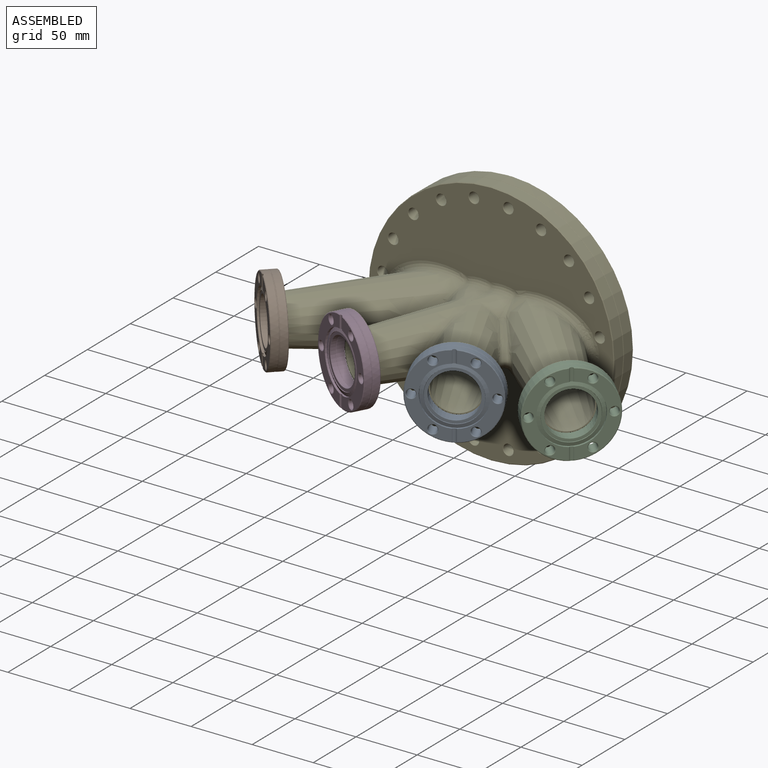
[diagram: assembled view]
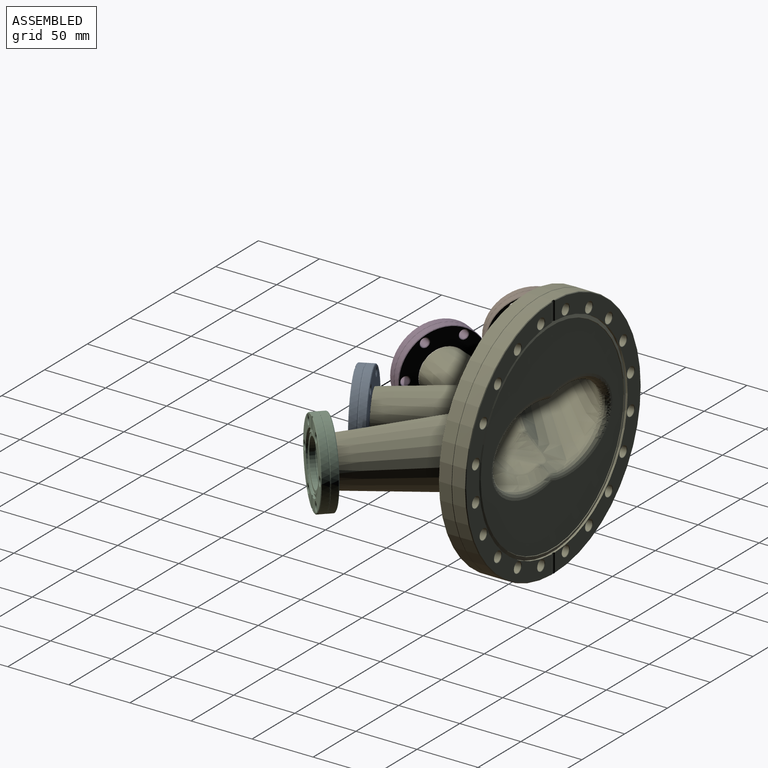
[diagram: assembled view, second angle]
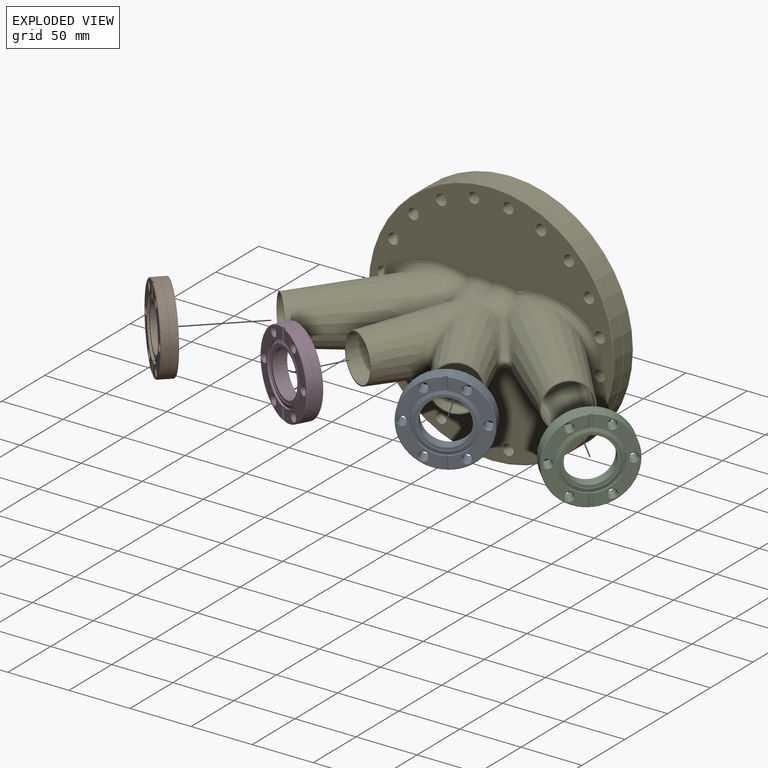
[diagram: exploded view]
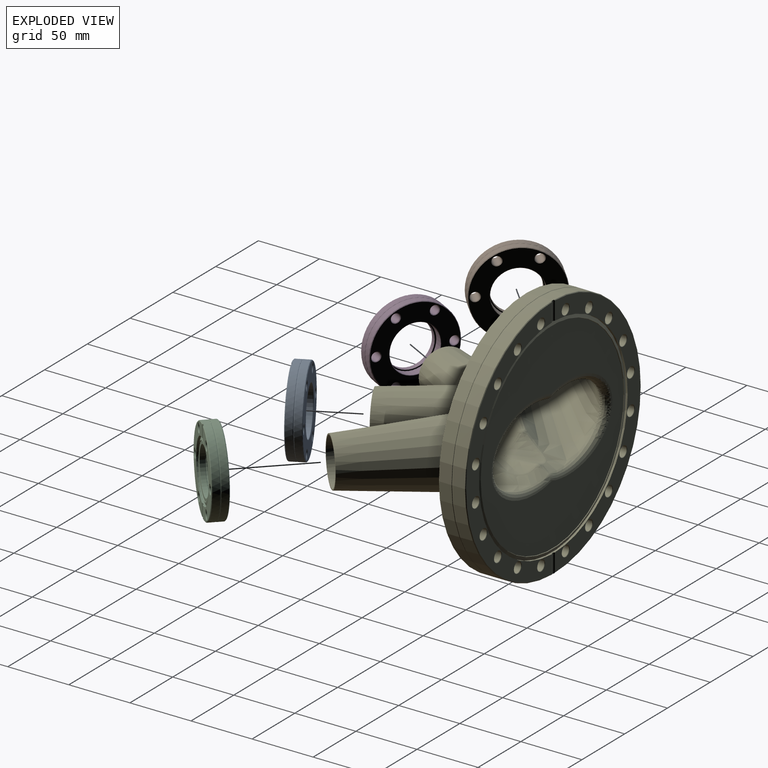
[diagram: exploded view, second angle]
ASSEMBLY  parts=5 mates=4
PART A: 41 faces, bbox 75.3x12.7x75.3 mm
  f0: cylinder r=34.54mm len=69.09mm, axis (0,-1,0), area 1172.5mm2, adj f1,f2,f5,f11,f36
  f1: cylinder r=2.38mm len=10.46mm, axis (0,0,1), area 41.3mm2, adj f0,f2,f3,f4,f5,f6
  f2: cone r=34.54mm half-angle=45deg, axis (0,1,0), area 75.3mm2, adj f0,f1,f3,f11
  f3: plane 67.98x32.27mm, normal (0,-1,0), area 728.6mm2, adj f1,f2,f4,f11,f12,f15,f18
  f4: cylinder r=24.13mm len=48.26mm, axis (0,1,0), area 275.3mm2, adj f1,f3,f6,f11,f38
  f5: cone r=34.54mm half-angle=45deg, axis (0,1,0), area 75.3mm2, adj f0,f1,f6,f11
  f6: plane 67.98x32.27mm, normal (0,-1,0), area 728.6mm2, adj f1,f4,f5,f11,f21,f24,f27
  f7: cylinder r=34.54mm len=69.09mm, axis (0,-1,0), area 1172.5mm2, adj f33,f36
  f8: plane 68.07x68.07mm, normal (0,1,0), area 2139.2mm2, adj f13,f16,f19,f22,f25,f28,f30,f33
  f9: cylinder r=19.18mm len=38.35mm, axis (0,1,0), area 696.9mm2, adj f30,f35
  f10: cylinder r=18.29mm len=36.58mm, axis (0,-1,0), area 423.2mm2, adj f31,f32
  f11: cylinder r=2.38mm len=10.46mm, axis (0,0,-1), area 41.3mm2, adj f0,f2,f3,f4,f5,f6
  f12: cone r=3.87mm half-angle=45deg, axis (0,-1,0), area 16.3mm2, adj f3,f14
  f13: cone r=3.37mm half-angle=45deg, axis (0,1,0), area 16.3mm2, adj f8,f14
  f14: cylinder r=3.37mm len=11.68mm, axis (0,-1,0), area 247.1mm2, adj f12,f13
  f15: cone r=3.87mm half-angle=45deg, axis (0,-1,0), area 16.3mm2, adj f3,f17
  f16: cone r=3.37mm half-angle=45deg, axis (0,1,0), area 16.3mm2, adj f8,f17
  f17: cylinder r=3.37mm len=11.68mm, axis (0,-1,0), area 247.1mm2, adj f15,f16
  f18: cone r=3.87mm half-angle=45deg, axis (0,-1,0), area 16.3mm2, adj f3,f20
  f19: cone r=3.37mm half-angle=45deg, axis (0,1,0), area 16.3mm2, adj f8,f20
  f20: cylinder r=3.37mm len=11.68mm, axis (0,-1,0), area 247.1mm2, adj f18,f19
  f21: cone r=3.87mm half-angle=45deg, axis (0,-1,0), area 16.3mm2, adj f6,f23
  f22: cone r=3.37mm half-angle=45deg, axis (0,1,0), area 16.3mm2, adj f8,f23
  f23: cylinder r=3.37mm len=11.68mm, axis (0,-1,0), area 247.1mm2, adj f21,f22
  f24: cone r=3.87mm half-angle=45deg, axis (0,-1,0), area 16.3mm2, adj f6,f26
  f25: cone r=3.37mm half-angle=45deg, axis (0,1,0), area 16.3mm2, adj f8,f26
  f26: cylinder r=3.37mm len=11.68mm, axis (0,-1,0), area 247.1mm2, adj f24,f25
  f27: cone r=3.87mm half-angle=45deg, axis (0,-1,0), area 16.3mm2, adj f6,f29
  f28: cone r=3.37mm half-angle=45deg, axis (0,1,0), area 16.3mm2, adj f8,f29
  f29: cylinder r=3.37mm len=11.68mm, axis (0,-1,0), area 247.1mm2, adj f27,f28
  f30: torus R=19.69mm, axis (0,1,0), area 97.1mm2, adj f8,f9
  f31: torus R=18.49mm, axis (0,-1,0), area 36.8mm2, adj f10,f40
  f32: torus R=18.54mm, axis (0,1,0), area 46.1mm2, adj f10,f39
  f33: cone r=34.04mm half-angle=45deg, axis (0,-1,0), area 154.8mm2, adj f7,f8
  f34: torus R=19.18mm, axis (0,-1,0), area 99.1mm2, adj f35,f40
  f35: cone r=19.18mm half-angle=32deg, axis (0,-1,0), area 74.1mm2, adj f9,f34
  f36: torus R=34.8mm, axis (0,-1,0), area 229.8mm2, adj f0,f7
  f37: cone r=20.96mm half-angle=20deg, axis (0,-1,0), area 70.9mm2, adj f38,f39
  f38: cone r=24.13mm half-angle=70deg, axis (0,1,0), area 478.6mm2, adj f4,f37
  f39: plane 41.54x41.54mm, normal (0,-1,0), area 275.2mm2, adj f32,f37
  f40: plane 38.35x38.35mm, normal (0,1,0), area 81.2mm2, adj f31,f34
PART B: same geometry as A
PART C: same geometry as A
PART D: same geometry as A
PART E: 145 faces, bbox 263.9x156.5x219.8 mm
  f0: cone r=18.35mm half-angle=4deg, axis (0.46,-0.89,0), area 342.2mm2, adj f1,f143,f144
  f1: bspline ~22.37x9.42mm, area 28.1mm2, adj f0,f2,f142
  f2: sphere r=5mm, area 17mm2, adj f1,f3,f143
  f3: bspline ~35.4x34.04mm, area 703.1mm2, adj f2,f4,f141,f142
  f4: cone r=18.35mm half-angle=5deg, axis (-0.71,-0.7,0), area 16439.3mm2, adj f3,f5,f137,f138,f139,f140,f143
  f5: bspline ~13.54x7.82mm, area 24.6mm2, adj f4,f6,f135,f136
  f6: cone r=18.35mm half-angle=5deg, axis (0.71,-0.7,0), area 16450.4mm2, adj f5,f7,f128,f129,f130,f132,f134
  f7: bspline ~31.29x26.55mm, area 142.5mm2, adj f6,f8,f127,f135
  f8: cone r=18.35mm half-angle=4deg, axis (-0.46,-0.89,0), area 342.2mm2, adj f7,f9,f124
  f9: bspline ~22.37x9.42mm, area 28.1mm2, adj f8,f10,f127
  f10: cone r=18.35mm half-angle=4deg, axis (0.46,-0.89,0), area 8385.7mm2, adj f9,f11,f121,f128,f142
  f11: plane 38.61x34.19mm, normal (-0.46,0.89,0), area 112.7mm2, adj f10,f12
  f12: cone r=19.3mm half-angle=4deg, axis (0.46,-0.89,0), area 8197.1mm2, adj f11,f13,f118,f119,f120
  f13: bspline ~43.68x39.91mm, area 809.1mm2, adj f12,f14,f117,f118
  f14: cone r=19.3mm half-angle=5deg, axis (0.71,-0.7,0), area 13483.3mm2, adj f13,f15,f112,f113,f114,f115,f116,f118
  f15: bspline ~65.19x22.77mm, area 560.4mm2, adj f14,f16,f111,f112
  f16: plane 201.53x201.53mm, normal (0,1,0), area 20530.4mm2, adj f15,f17,f71,f72,f73,f74,f75,f76
  f17: cone r=4.22mm half-angle=45deg, axis (0,1,0), area 9.8mm2, adj f16,f18
  f18: cylinder r=4.22mm len=21.84mm, axis (0,-1,0), area 578.7mm2, adj f17,f19
  f19: cone r=4.47mm half-angle=45deg, axis (0,-1,0), area 9.8mm2, adj f18,f20
  f20: plane 201.39x98.94mm, normal (0,-1,0), area 3707.8mm2, adj f19,f21,f23,f25,f27,f29,f31,f33
  f21: cone r=4.47mm half-angle=45deg, axis (0,-1,0), area 9.8mm2, adj f20,f22
  f22: cylinder r=4.22mm len=21.84mm, axis (0,-1,0), area 578.7mm2, adj f21,f77
  f23: cone r=4.47mm half-angle=45deg, axis (0,-1,0), area 9.8mm2, adj f20,f24
  f24: cylinder r=4.22mm len=21.84mm, axis (0,-1,0), area 578.7mm2, adj f23,f76
  f25: cone r=4.47mm half-angle=45deg, axis (0,-1,0), area 9.8mm2, adj f20,f26
  f26: cylinder r=4.22mm len=21.84mm, axis (0,-1,0), area 578.7mm2, adj f25,f75
  f27: cone r=4.47mm half-angle=45deg, axis (0,-1,0), area 9.8mm2, adj f20,f28
  f28: cylinder r=4.22mm len=21.84mm, axis (0,-1,0), area 578.7mm2, adj f27,f74
  f29: cone r=4.47mm half-angle=45deg, axis (0,-1,0), area 9.8mm2, adj f20,f30
  f30: cylinder r=4.22mm len=21.84mm, axis (0,-1,0), area 578.7mm2, adj f29,f82
  f31: cone r=4.47mm half-angle=45deg, axis (0,-1,0), area 9.8mm2, adj f20,f32
  f32: cylinder r=4.22mm len=21.84mm, axis (0,-1,0), area 578.7mm2, adj f31,f83
  f33: cone r=4.47mm half-angle=45deg, axis (0,-1,0), area 9.8mm2, adj f20,f34
  f34: cylinder r=4.22mm len=21.84mm, axis (0,-1,0), area 578.7mm2, adj f33,f73
  f35: cone r=4.47mm half-angle=45deg, axis (0,-1,0), area 9.8mm2, adj f20,f36
  f36: cylinder r=4.22mm len=21.84mm, axis (0,-1,0), area 578.7mm2, adj f35,f72
  f37: cone r=4.47mm half-angle=45deg, axis (0,-1,0), area 9.8mm2, adj f20,f38
  f38: cylinder r=4.22mm len=21.84mm, axis (0,-1,0), area 578.7mm2, adj f37,f71
  f39: cylinder r=85.72mm len=171.45mm, axis (0,1,0), area 915.9mm2, adj f20,f40,f43,f68,f70
  f40: cone r=85.72mm half-angle=70deg, axis (0,1,0), area 1610.6mm2, adj f39,f41
  f41: cone r=82.87mm half-angle=20deg, axis (0,-1,0), area 281.2mm2, adj f40,f42
  f42: plane 165.37x165.37mm, normal (0,-1,0), area 13289.7mm2, adj f41,f134,f137
  f43: plane 201.39x98.94mm, normal (0,-1,0), area 3707.8mm2, adj f39,f44,f46,f48,f50,f52,f54,f56
  f44: cone r=4.47mm half-angle=45deg, axis (0,-1,0), area 9.8mm2, adj f43,f45
  f45: cylinder r=4.22mm len=21.84mm, axis (0,-1,0), area 578.7mm2, adj f44,f109
  f46: cone r=4.47mm half-angle=45deg, axis (0,-1,0), area 9.8mm2, adj f43,f47
  f47: cylinder r=4.22mm len=21.84mm, axis (0,-1,0), area 578.7mm2, adj f46,f108
  f48: cone r=4.47mm half-angle=45deg, axis (0,-1,0), area 9.8mm2, adj f43,f49
  f49: cylinder r=4.22mm len=21.84mm, axis (0,-1,0), area 578.7mm2, adj f48,f107
  f50: cone r=4.47mm half-angle=45deg, axis (0,-1,0), area 9.8mm2, adj f43,f51
  f51: cylinder r=4.22mm len=21.84mm, axis (0,-1,0), area 578.7mm2, adj f50,f106
  f52: cone r=4.47mm half-angle=45deg, axis (0,-1,0), area 9.8mm2, adj f43,f53
  f53: cylinder r=4.22mm len=21.84mm, axis (0,-1,0), area 578.7mm2, adj f52,f101
  f54: cone r=4.47mm half-angle=45deg, axis (0,-1,0), area 9.8mm2, adj f43,f55
  f55: cylinder r=4.22mm len=21.84mm, axis (0,-1,0), area 578.7mm2, adj f54,f103
  f56: cone r=4.47mm half-angle=45deg, axis (0,-1,0), area 9.8mm2, adj f43,f57
  f57: cylinder r=4.22mm len=21.84mm, axis (0,-1,0), area 578.7mm2, adj f56,f81
  f58: cone r=4.47mm half-angle=45deg, axis (0,-1,0), area 9.8mm2, adj f43,f59
  f59: cylinder r=4.22mm len=21.84mm, axis (0,-1,0), area 578.7mm2, adj f58,f80
  f60: cone r=4.47mm half-angle=45deg, axis (0,-1,0), area 9.8mm2, adj f43,f61
  f61: cylinder r=4.22mm len=21.84mm, axis (0,-1,0), area 578.7mm2, adj f60,f79
  f62: cone r=4.47mm half-angle=45deg, axis (0,-1,0), area 9.8mm2, adj f43,f63
  f63: cylinder r=4.22mm len=21.84mm, axis (0,-1,0), area 578.7mm2, adj f62,f78
  f64: cone r=101.22mm half-angle=45deg, axis (0,1,0), area 225.8mm2, adj f43,f65,f68,f70
  f65: cylinder r=101.22mm len=202.44mm, axis (0,-1,0), area 6504.8mm2, adj f64,f66,f68,f69,f70
  f66: torus R=101.47mm, axis (0,-1,0), area 675.5mm2, adj f65,f67
  f67: cylinder r=101.22mm len=202.44mm, axis (0,-1,0), area 6504.8mm2, adj f66,f110
  f68: cylinder r=2.38mm len=15.51mm, axis (0,0,-1), area 61.4mm2, adj f20,f39,f43,f64,f65,f69
  f69: cone r=101.22mm half-angle=45deg, axis (0,1,0), area 225.8mm2, adj f20,f65,f68,f70
  f70: cylinder r=2.38mm len=15.51mm, axis (0,0,1), area 61.4mm2, adj f20,f39,f43,f64,f65,f69
  f71: cone r=4.22mm half-angle=45deg, axis (0,1,0), area 9.8mm2, adj f16,f38
  f72: cone r=4.22mm half-angle=45deg, axis (0,1,0), area 9.8mm2, adj f16,f36
  f73: cone r=4.22mm half-angle=45deg, axis (0,1,0), area 9.8mm2, adj f16,f34
  f74: cone r=4.22mm half-angle=45deg, axis (0,1,0), area 9.8mm2, adj f16,f28
  f75: cone r=4.22mm half-angle=45deg, axis (0,1,0), area 9.8mm2, adj f16,f26
  f76: cone r=4.22mm half-angle=45deg, axis (0,1,0), area 9.8mm2, adj f16,f24
  f77: cone r=4.22mm half-angle=45deg, axis (0,1,0), area 9.8mm2, adj f16,f22
  f78: cone r=4.22mm half-angle=45deg, axis (0,1,0), area 9.8mm2, adj f16,f63
  f79: cone r=4.22mm half-angle=45deg, axis (0,1,0), area 9.8mm2, adj f16,f61
  f80: cone r=4.22mm half-angle=45deg, axis (0,1,0), area 9.8mm2, adj f16,f59
  f81: cone r=4.22mm half-angle=45deg, axis (0,1,0), area 9.8mm2, adj f16,f57
  f82: cone r=4.22mm half-angle=45deg, axis (0,1,0), area 9.8mm2, adj f16,f30,f114
  f83: cone r=4.22mm half-angle=45deg, axis (0,1,0), area 9.8mm2, adj f16,f32,f112
  f84: bspline ~19.86x6.29mm, area 136.7mm2, adj f16,f85,f98,f111
  f85: sphere r=5mm, area 11.2mm2, adj f84,f86,f99
  f86: bspline ~17.81x2.42mm, area 11.3mm2, adj f85,f87,f98
  f87: cone r=19.3mm half-angle=4deg, axis (0.46,-0.89,0), area 332.5mm2, adj f86,f88,f96,f99
  f88: bspline ~23.15x9.72mm, area 26.9mm2, adj f87,f89,f95
  f89: cone r=19.3mm half-angle=4deg, axis (-0.46,-0.89,0), area 8196.1mm2, adj f88,f90,f94,f105,f119
  f90: bspline ~41.79x40.05mm, area 810.2mm2, adj f89,f91,f95,f105
  f91: cone r=19.3mm half-angle=5deg, axis (-0.71,-0.7,0), area 13484.5mm2, adj f90,f92,f93,f96,f100,f102,f104,f105
  f92: bspline ~10.01x8.43mm, area 24.3mm2, adj f91,f102,f103,f104
  f93: bspline ~10.23x8.52mm, area 24.3mm2, adj f91,f100,f101,f102
  f94: plane 38.61x34.19mm, normal (0.46,0.89,0), area 112.7mm2, adj f89,f142
  f95: sphere r=5mm, area 15.9mm2, adj f88,f90,f96
  f96: bspline ~19.87x11.83mm, area 79.1mm2, adj f87,f91,f95,f97
  f97: sphere r=5mm, area 14.6mm2, adj f96,f99,f100
  f98: cone r=19.3mm half-angle=4deg, axis (-0.46,-0.89,0), area 332.5mm2, adj f84,f86,f116,f120
  f99: bspline ~19.86x6.29mm, area 136.7mm2, adj f16,f85,f87,f97
  f100: bspline ~65.19x22.77mm, area 560.4mm2, adj f16,f91,f93,f97
  f101: cone r=4.22mm half-angle=45deg, axis (0,1,0), area 9.8mm2, adj f16,f53,f93
  f102: bspline ~21.92x8.25mm, area 219.2mm2, adj f16,f91,f92,f93
  f103: cone r=4.22mm half-angle=45deg, axis (0,1,0), area 9.8mm2, adj f16,f55,f92
  f104: bspline ~72.35x22.77mm, area 585.7mm2, adj f16,f91,f92,f105
  f105: cone r=19.3mm half-angle=4deg, axis (0.46,-0.89,0), area 483.1mm2, adj f16,f89,f90,f91,f104,f118
  f106: cone r=4.22mm half-angle=45deg, axis (0,1,0), area 9.8mm2, adj f16,f51
  f107: cone r=4.22mm half-angle=45deg, axis (0,1,0), area 9.8mm2, adj f16,f49
  f108: cone r=4.22mm half-angle=45deg, axis (0,1,0), area 9.8mm2, adj f16,f47
  f109: cone r=4.22mm half-angle=45deg, axis (0,1,0), area 9.8mm2, adj f16,f45
  f110: cone r=100.71mm half-angle=45deg, axis (0,-1,0), area 455.8mm2, adj f16,f67
  f111: sphere r=5mm, area 14.6mm2, adj f15,f84,f116
  f112: bspline ~10.01x8.43mm, area 24.3mm2, adj f14,f15,f83,f113
  f113: bspline ~21.92x8.25mm, area 219.2mm2, adj f14,f16,f112,f114
  f114: bspline ~10.23x8.52mm, area 24.3mm2, adj f14,f82,f113,f115
  f115: bspline ~72.35x22.77mm, area 585.7mm2, adj f14,f16,f114,f118
  f116: bspline ~21.25x12.29mm, area 79.1mm2, adj f14,f98,f111,f117
  f117: sphere r=5mm, area 15.2mm2, adj f13,f116,f120
  f118: cone r=19.3mm half-angle=4deg, axis (-0.46,-0.89,0), area 483.1mm2, adj f12,f13,f14,f16,f105,f115
  f119: bspline ~53.24x50.61mm, area 0mm2, adj f12,f89
  f120: bspline ~23.15x9.72mm, area 26.9mm2, adj f12,f98,f117
  f121: bspline ~22.32x9.36mm, area 28.1mm2, adj f10,f122,f123
  f122: cone r=18.35mm half-angle=4deg, axis (-0.46,-0.89,0), area 342.2mm2, adj f121,f130,f144
  f123: sphere r=5mm, area 16.3mm2, adj f121,f128,f130
  f124: bspline ~32x4.35mm, area 39.1mm2, adj f8,f125,f135
  f125: cone r=18.35mm half-angle=4deg, axis (0.46,-0.89,0), area 342.2mm2, adj f124,f126,f140
  f126: bspline ~22.32x9.36mm, area 28.1mm2, adj f125,f141,f142
  f127: sphere r=5mm, area 16.3mm2, adj f7,f9,f128
  f128: bspline ~34.85x32.28mm, area 703.3mm2, adj f6,f10,f123,f127
  f129: plane 38.61x27.55mm, normal (-0.71,0.7,0), area 112.7mm2, adj f6,f14
  f130: bspline ~31.29x27.95mm, area 142.5mm2, adj f6,f122,f123,f131
  f131: sphere r=5mm, area 20.4mm2, adj f130,f132,f143,f144
  f132: bspline ~14.15x7.66mm, area 24.6mm2, adj f6,f131,f133,f138
  f133: sphere r=5mm, area 11.5mm2, adj f132,f134,f137
  f134: bspline ~77.37x70.22mm, area 1430.9mm2, adj f6,f42,f133,f136
  f135: sphere r=5mm, area 16.2mm2, adj f5,f7,f124,f140
  f136: sphere r=5mm, area 11.5mm2, adj f5,f134,f137
  f137: bspline ~77.37x70.22mm, area 1430.9mm2, adj f4,f42,f133,f136
  f138: cone r=18.35mm half-angle=5deg, axis (-0.71,-0.7,0), area 40.6mm2, adj f4,f132,f143
  f139: plane 38.61x27.55mm, normal (0.71,0.7,0), area 112.7mm2, adj f4,f91
  f140: bspline ~31.78x26.2mm, area 142.5mm2, adj f4,f125,f135,f141
  f141: sphere r=5mm, area 17mm2, adj f3,f126,f140
  f142: cone r=18.35mm half-angle=4deg, axis (-0.46,-0.89,0), area 8386.3mm2, adj f1,f3,f10,f94,f126
  f143: bspline ~32.26x27.53mm, area 142.4mm2, adj f0,f2,f4,f131,f138
  f144: bspline ~33.9x4.59mm, area 39.1mm2, adj f0,f122,f131
PLACE A rot(axis=(0,0,1),27.2deg) t=(22.96,-302.15,311.17)mm
PLACE B rot(axis=(0,0,-1),46.1deg) t=(-143.48,-279.49,311.17)mm
PLACE C rot(axis=(0,0,1),45deg) t=(102.27,-281.75,311.17)mm
PLACE D rot(axis=(0,0,-1),28.2deg) t=(-64.56,-301.34,311.17)mm
PLACE E rot(axis=(0,0,1),179.5deg) t=(-19.76,-188.31,311.17)mm
MATE fastened E.f0 <-> A.f9  axis (0.46,-0.89,0) through (20.06,-296.5,311.17)mm
MATE fastened E.f8 <-> D.f9  axis (-0.47,-0.88,0) through (-61.56,-295.74,311.17)mm
MATE fastened E.f6 <-> C.f9  axis (0.71,-0.71,0) through (97.78,-277.26,311.17)mm
MATE fastened E.f4 <-> B.f9  axis (0.72,0.69,0) through (-138.91,-275.08,311.17)mm
